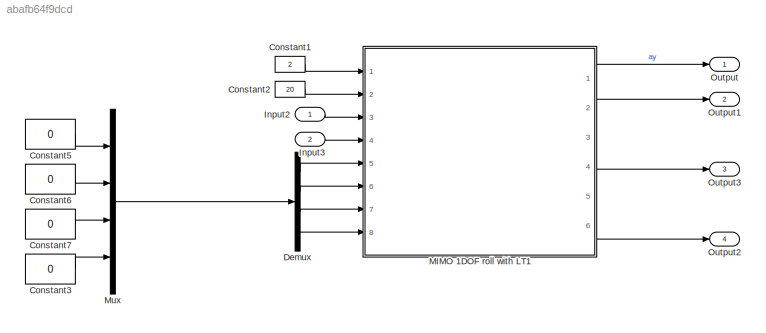
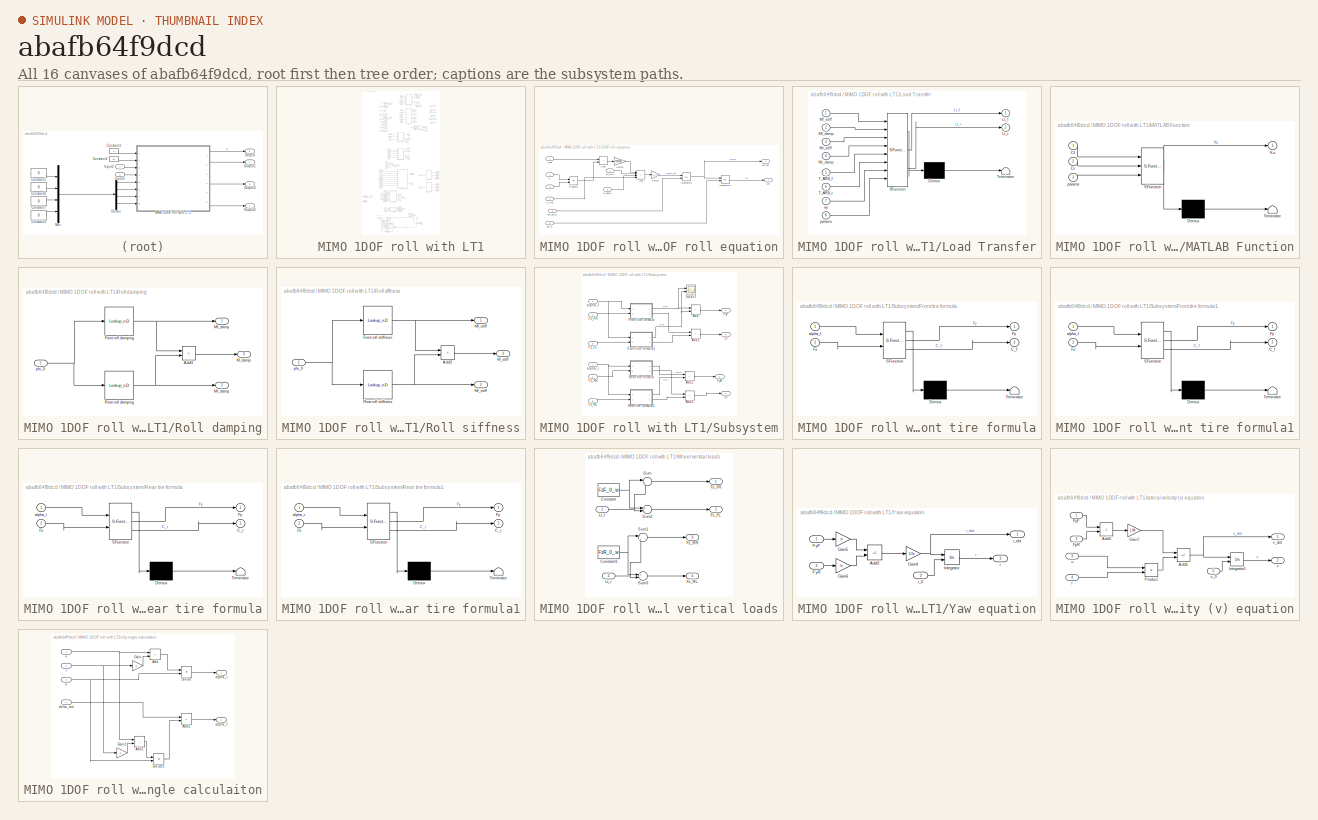
[diagram: thumbnail index - all 16 canvases of the model, root first then tree order]
MODEL slx_abafb64f9dcd
KIND model
CONFIG AbsTol = auto
CONFIG EnableMultiTasking = off
CONFIG FixedStep = auto
CONFIG MaxStep = auto
CONFIG MinStep = auto
CONFIG RelTol = 1e-3
CONFIG SampleTimeConstraint = Unconstrained
CONFIG SolverName = VariableStepAuto
CONFIG StartTime = 0.0
CONFIG StopTime = 10
BLOCK [Constant] Constant1
  Value = 2
BLOCK [Constant] Constant2
  Value = 20
BLOCK [Constant] Constant3
  Value = 0
BLOCK [Constant] Constant5
  Value = 0
BLOCK [Constant] Constant6
  Value = 0
BLOCK [Constant] Constant7
  Value = 0
BLOCK [Demux] Demux
  Ports = [1, 4]
BLOCK [Inport] Input2
BLOCK [Inport] Input3
  Port = 2
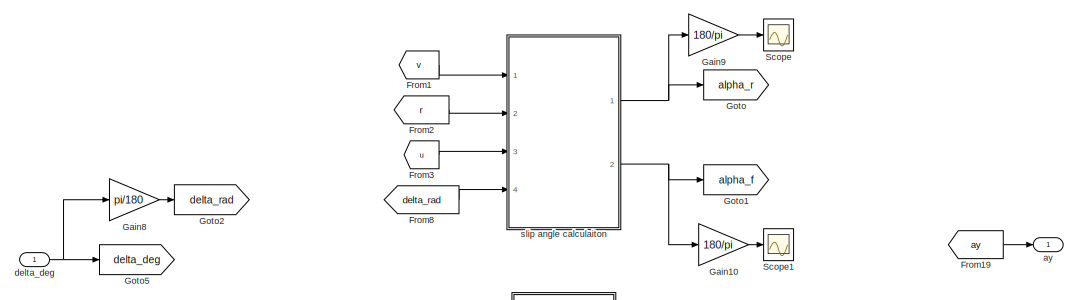
[diagram: MIMO 1DOF roll with LT1 - part 1/4, full width, top band]
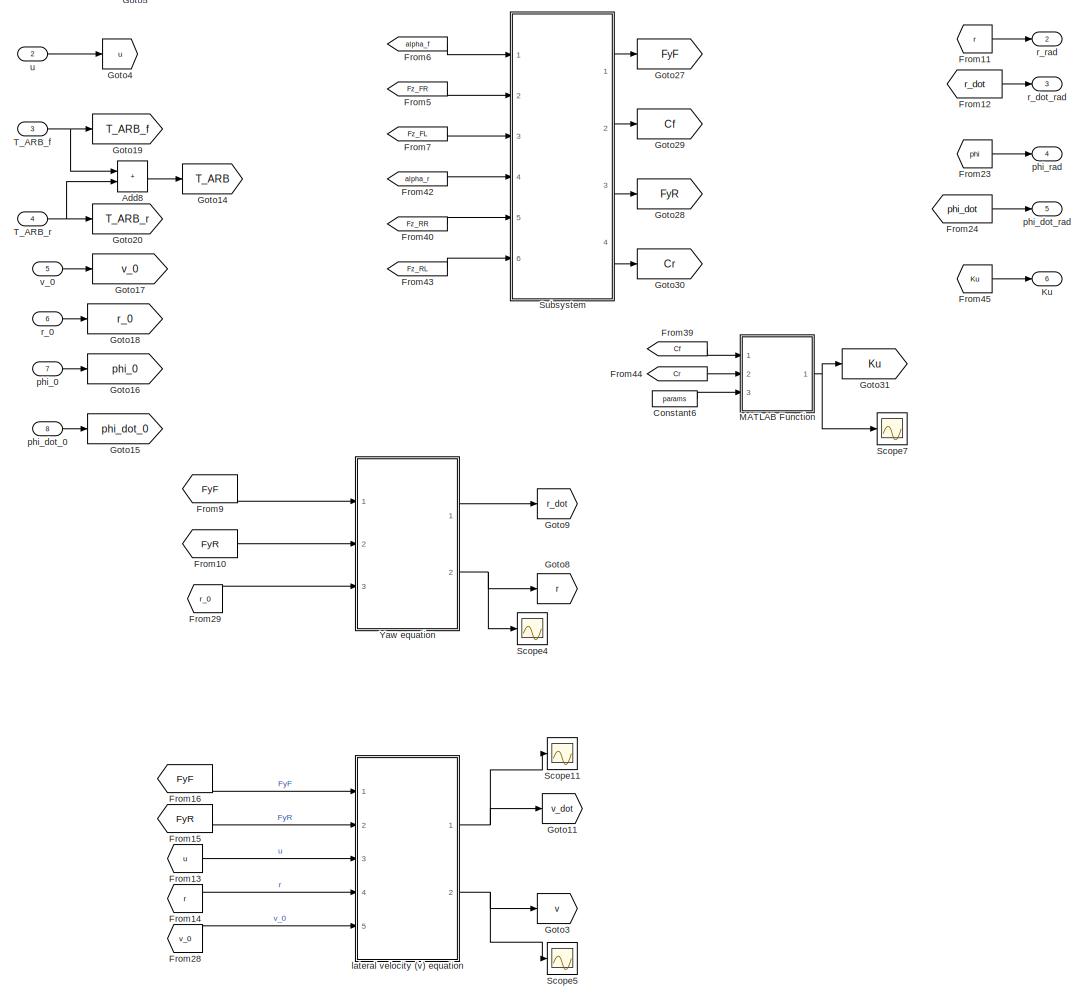
[diagram: MIMO 1DOF roll with LT1 - part 2/4, full width, top band]
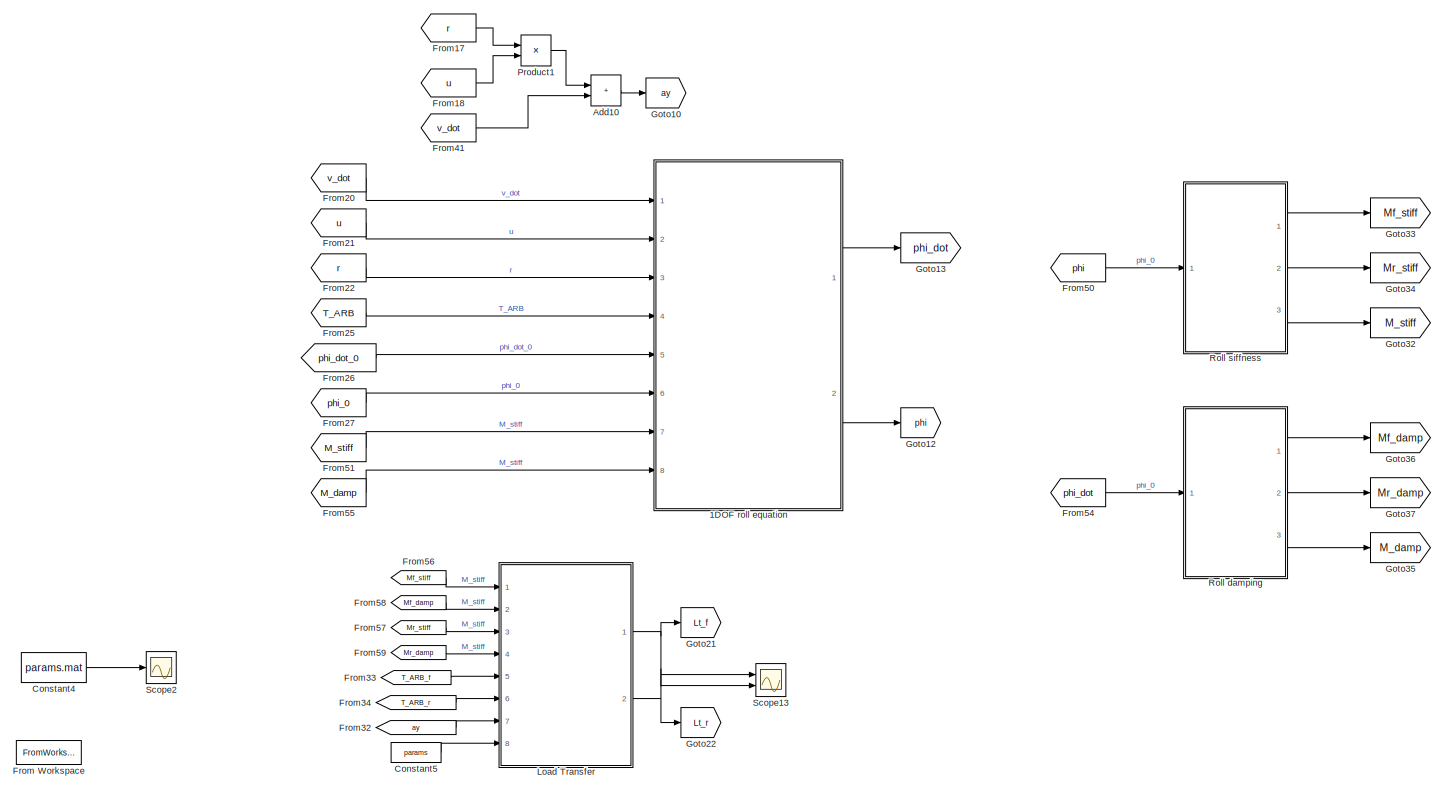
[diagram: MIMO 1DOF roll with LT1 - part 3/4, full width, middle band]
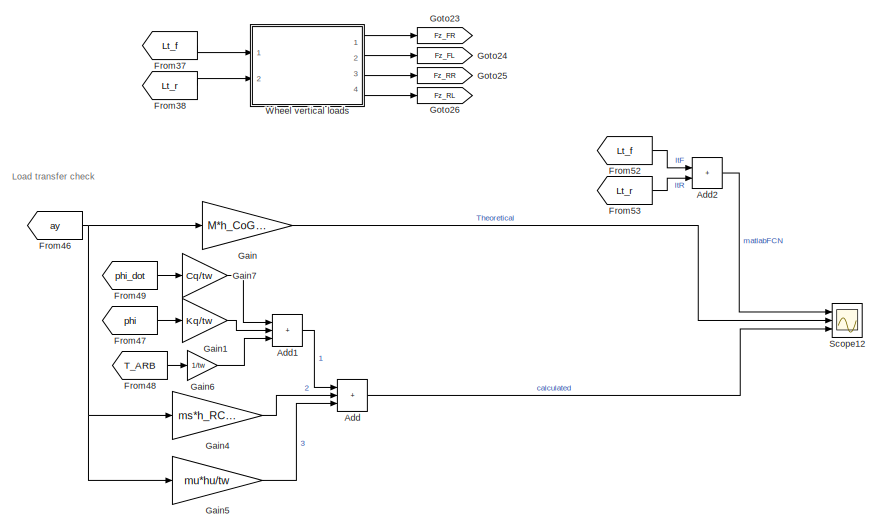
[diagram: MIMO 1DOF roll with LT1 - part 4/4, bottom center region]
BLOCK [SubSystem] MIMO 1DOF roll with LT1
  MinAlgLoopOccurrences = on
  Ports = [8, 6]
  RequestExecContextInheritance = off
  TreatAsAtomicUnit = on
BLOCK [SubSystem] MIMO 1DOF roll with LT1/1DOF roll equation
  Ports = [8, 2]
  RequestExecContextInheritance = off
BLOCK [Sum] MIMO 1DOF roll with LT1/1DOF roll equation/Add6
  IconShape = rectangular
  Ports = [2, 1]
BLOCK [Sum] MIMO 1DOF roll with LT1/1DOF roll equation/Add7
  IconShape = rectangular
  Inputs = +---
  Ports = [4, 1]
BLOCK [Gain] MIMO 1DOF roll with LT1/1DOF roll equation/Gain11
  Gain = 1/Ix
BLOCK [Gain] MIMO 1DOF roll with LT1/1DOF roll equation/Gain12
  Gain = ms*hs
BLOCK [Integrator] MIMO 1DOF roll with LT1/1DOF roll equation/Integrator2
  InitialConditionSource = external
  Ports = [2, 1]
BLOCK [Integrator] MIMO 1DOF roll with LT1/1DOF roll equation/Integrator3
  InitialConditionSource = external
  Ports = [2, 1]
BLOCK [Inport] MIMO 1DOF roll with LT1/1DOF roll equation/M_damp
  Port = 8
BLOCK [Inport] MIMO 1DOF roll with LT1/1DOF roll equation/M_stiff
  Port = 7
BLOCK [Product] MIMO 1DOF roll with LT1/1DOF roll equation/Product2
  Ports = [2, 1]
BLOCK [Inport] MIMO 1DOF roll with LT1/1DOF roll equation/T_ARB
  Port = 4
BLOCK [Outport] MIMO 1DOF roll with LT1/1DOF roll equation/phi
  Port = 2
BLOCK [Inport] MIMO 1DOF roll with LT1/1DOF roll equation/phi_0
  Port = 6
BLOCK [Outport] MIMO 1DOF roll with LT1/1DOF roll equation/phi_dot
BLOCK [Inport] MIMO 1DOF roll with LT1/1DOF roll equation/phi_dot_0
  Port = 5
BLOCK [Inport] MIMO 1DOF roll with LT1/1DOF roll equation/r
  Port = 3
BLOCK [Inport] MIMO 1DOF roll with LT1/1DOF roll equation/u
  Port = 2
BLOCK [Inport] MIMO 1DOF roll with LT1/1DOF roll equation/v_dot
BLOCK [Sum] MIMO 1DOF roll with LT1/Add
  Commented = on
  IconShape = rectangular
  Inputs = +++
  Ports = [3, 1]
BLOCK [Sum] MIMO 1DOF roll with LT1/Add1
  Commented = on
  IconShape = rectangular
  Inputs = +++
  Ports = [3, 1]
BLOCK [Sum] MIMO 1DOF roll with LT1/Add10
  IconShape = rectangular
  Ports = [2, 1]
BLOCK [Sum] MIMO 1DOF roll with LT1/Add2
  Commented = on
  IconShape = rectangular
  Ports = [2, 1]
BLOCK [Sum] MIMO 1DOF roll with LT1/Add8
  IconShape = rectangular
  Ports = [2, 1]
BLOCK [Constant] MIMO 1DOF roll with LT1/Constant4
  Commented = on
  Value = params.mat
BLOCK [Constant] MIMO 1DOF roll with LT1/Constant5
  Value = params
BLOCK [Constant] MIMO 1DOF roll with LT1/Constant6
  Value = params
BLOCK [FromWorkspace] MIMO 1DOF roll with LT1/From Workspace
  Commented = on
  VariableName = simin
BLOCK [From] MIMO 1DOF roll with LT1/From1
  GotoTag = v
BLOCK [From] MIMO 1DOF roll with LT1/From10
  GotoTag = FyR
BLOCK [From] MIMO 1DOF roll with LT1/From11
  GotoTag = r
BLOCK [From] MIMO 1DOF roll with LT1/From12
  GotoTag = r_dot
BLOCK [From] MIMO 1DOF roll with LT1/From13
  GotoTag = u
BLOCK [From] MIMO 1DOF roll with LT1/From14
  GotoTag = r
BLOCK [From] MIMO 1DOF roll with LT1/From15
  GotoTag = FyR
BLOCK [From] MIMO 1DOF roll with LT1/From16
  GotoTag = FyF
BLOCK [From] MIMO 1DOF roll with LT1/From17
  GotoTag = r
BLOCK [From] MIMO 1DOF roll with LT1/From18
  GotoTag = u
BLOCK [From] MIMO 1DOF roll with LT1/From19
  GotoTag = ay
BLOCK [From] MIMO 1DOF roll with LT1/From2
  GotoTag = r
BLOCK [From] MIMO 1DOF roll with LT1/From20
  GotoTag = v_dot
BLOCK [From] MIMO 1DOF roll with LT1/From21
  GotoTag = u
BLOCK [From] MIMO 1DOF roll with LT1/From22
  GotoTag = r
BLOCK [From] MIMO 1DOF roll with LT1/From23
  GotoTag = phi
BLOCK [From] MIMO 1DOF roll with LT1/From24
  GotoTag = phi_dot
BLOCK [From] MIMO 1DOF roll with LT1/From25
  GotoTag = T_ARB
BLOCK [From] MIMO 1DOF roll with LT1/From26
  GotoTag = phi_dot_0
BLOCK [From] MIMO 1DOF roll with LT1/From27
  GotoTag = phi_0
BLOCK [From] MIMO 1DOF roll with LT1/From28
  GotoTag = v_0
BLOCK [From] MIMO 1DOF roll with LT1/From29
  GotoTag = r_0
BLOCK [From] MIMO 1DOF roll with LT1/From3
  GotoTag = u
BLOCK [From] MIMO 1DOF roll with LT1/From32
  GotoTag = ay
BLOCK [From] MIMO 1DOF roll with LT1/From33
  GotoTag = T_ARB_f
BLOCK [From] MIMO 1DOF roll with LT1/From34
  GotoTag = T_ARB_r
BLOCK [From] MIMO 1DOF roll with LT1/From37
  GotoTag = Lt_f
BLOCK [From] MIMO 1DOF roll with LT1/From38
  GotoTag = Lt_r
BLOCK [From] MIMO 1DOF roll with LT1/From39
  GotoTag = Cf
BLOCK [From] MIMO 1DOF roll with LT1/From40
  GotoTag = Fz_RR
BLOCK [From] MIMO 1DOF roll with LT1/From41
  GotoTag = v_dot
BLOCK [From] MIMO 1DOF roll with LT1/From42
  GotoTag = alpha_r
BLOCK [From] MIMO 1DOF roll with LT1/From43
  GotoTag = Fz_RL
BLOCK [From] MIMO 1DOF roll with LT1/From44
  GotoTag = Cr
BLOCK [From] MIMO 1DOF roll with LT1/From45
  GotoTag = Ku
BLOCK [From] MIMO 1DOF roll with LT1/From46
  Commented = on
  GotoTag = ay
BLOCK [From] MIMO 1DOF roll with LT1/From47
  Commented = on
  GotoTag = phi
BLOCK [From] MIMO 1DOF roll with LT1/From48
  Commented = on
  GotoTag = T_ARB
BLOCK [From] MIMO 1DOF roll with LT1/From49
  Commented = on
  GotoTag = phi_dot
BLOCK [From] MIMO 1DOF roll with LT1/From5
  GotoTag = Fz_FR
BLOCK [From] MIMO 1DOF roll with LT1/From50
  GotoTag = phi
BLOCK [From] MIMO 1DOF roll with LT1/From51
  GotoTag = M_stiff
BLOCK [From] MIMO 1DOF roll with LT1/From52
  Commented = on
  GotoTag = Lt_f
BLOCK [From] MIMO 1DOF roll with LT1/From53
  Commented = on
  GotoTag = Lt_r
BLOCK [From] MIMO 1DOF roll with LT1/From54
  GotoTag = phi_dot
BLOCK [From] MIMO 1DOF roll with LT1/From55
  GotoTag = M_damp
BLOCK [From] MIMO 1DOF roll with LT1/From56
  GotoTag = Mf_stiff
BLOCK [From] MIMO 1DOF roll with LT1/From57
  GotoTag = Mr_stiff
BLOCK [From] MIMO 1DOF roll with LT1/From58
  GotoTag = Mf_damp
BLOCK [From] MIMO 1DOF roll with LT1/From59
  GotoTag = Mr_damp
BLOCK [From] MIMO 1DOF roll with LT1/From6
  GotoTag = alpha_f
BLOCK [From] MIMO 1DOF roll with LT1/From7
  GotoTag = Fz_FL
BLOCK [From] MIMO 1DOF roll with LT1/From8
  GotoTag = delta_rad
BLOCK [From] MIMO 1DOF roll with LT1/From9
  GotoTag = FyF
BLOCK [Gain] MIMO 1DOF roll with LT1/Gain
  Commented = on
  Gain = M*h_CoG/tw
BLOCK [Gain] MIMO 1DOF roll with LT1/Gain1
  Commented = on
  Gain = Kq/tw
BLOCK [Gain] MIMO 1DOF roll with LT1/Gain10
  Gain = 180/pi
BLOCK [Gain] MIMO 1DOF roll with LT1/Gain4
  Commented = on
  Gain = ms*h_RC/tw
BLOCK [Gain] MIMO 1DOF roll with LT1/Gain5
  Commented = on
  Gain = mu*hu/tw
BLOCK [Gain] MIMO 1DOF roll with LT1/Gain6
  Commented = on
  Gain = 1/tw
BLOCK [Gain] MIMO 1DOF roll with LT1/Gain7
  Commented = on
  Gain = Cq/tw
BLOCK [Gain] MIMO 1DOF roll with LT1/Gain8
  Gain = pi/180
BLOCK [Gain] MIMO 1DOF roll with LT1/Gain9
  Gain = 180/pi
BLOCK [Goto] MIMO 1DOF roll with LT1/Goto
  GotoTag = alpha_r
BLOCK [Goto] MIMO 1DOF roll with LT1/Goto1
  GotoTag = alpha_f
BLOCK [Goto] MIMO 1DOF roll with LT1/Goto10
  GotoTag = ay
BLOCK [Goto] MIMO 1DOF roll with LT1/Goto11
  GotoTag = v_dot
BLOCK [Goto] MIMO 1DOF roll with LT1/Goto12
  GotoTag = phi
BLOCK [Goto] MIMO 1DOF roll with LT1/Goto13
  GotoTag = phi_dot
BLOCK [Goto] MIMO 1DOF roll with LT1/Goto14
  GotoTag = T_ARB
BLOCK [Goto] MIMO 1DOF roll with LT1/Goto15
  GotoTag = phi_dot_0
BLOCK [Goto] MIMO 1DOF roll with LT1/Goto16
  GotoTag = phi_0
BLOCK [Goto] MIMO 1DOF roll with LT1/Goto17
  GotoTag = v_0
BLOCK [Goto] MIMO 1DOF roll with LT1/Goto18
  GotoTag = r_0
BLOCK [Goto] MIMO 1DOF roll with LT1/Goto19
  GotoTag = T_ARB_f
BLOCK [Goto] MIMO 1DOF roll with LT1/Goto2
  GotoTag = delta_rad
BLOCK [Goto] MIMO 1DOF roll with LT1/Goto20
  GotoTag = T_ARB_r
BLOCK [Goto] MIMO 1DOF roll with LT1/Goto21
  GotoTag = Lt_f
BLOCK [Goto] MIMO 1DOF roll with LT1/Goto22
  GotoTag = Lt_r
BLOCK [Goto] MIMO 1DOF roll with LT1/Goto23
  GotoTag = Fz_FR
BLOCK [Goto] MIMO 1DOF roll with LT1/Goto24
  GotoTag = Fz_FL
BLOCK [Goto] MIMO 1DOF roll with LT1/Goto25
  GotoTag = Fz_RR
BLOCK [Goto] MIMO 1DOF roll with LT1/Goto26
  GotoTag = Fz_RL
BLOCK [Goto] MIMO 1DOF roll with LT1/Goto27
  GotoTag = FyF
BLOCK [Goto] MIMO 1DOF roll with LT1/Goto28
  GotoTag = FyR
BLOCK [Goto] MIMO 1DOF roll with LT1/Goto29
  GotoTag = Cf
BLOCK [Goto] MIMO 1DOF roll with LT1/Goto3
  GotoTag = v
BLOCK [Goto] MIMO 1DOF roll with LT1/Goto30
  GotoTag = Cr
BLOCK [Goto] MIMO 1DOF roll with LT1/Goto31
  GotoTag = Ku
BLOCK [Goto] MIMO 1DOF roll with LT1/Goto32
  GotoTag = M_stiff
BLOCK [Goto] MIMO 1DOF roll with LT1/Goto33
  GotoTag = Mf_stiff
BLOCK [Goto] MIMO 1DOF roll with LT1/Goto34
  GotoTag = Mr_stiff
BLOCK [Goto] MIMO 1DOF roll with LT1/Goto35
  GotoTag = M_damp
BLOCK [Goto] MIMO 1DOF roll with LT1/Goto36
  GotoTag = Mf_damp
BLOCK [Goto] MIMO 1DOF roll with LT1/Goto37
  GotoTag = Mr_damp
BLOCK [Goto] MIMO 1DOF roll with LT1/Goto4
  GotoTag = u
BLOCK [Goto] MIMO 1DOF roll with LT1/Goto5
  Commented = on
  GotoTag = delta_deg
BLOCK [Goto] MIMO 1DOF roll with LT1/Goto8
  GotoTag = r
BLOCK [Goto] MIMO 1DOF roll with LT1/Goto9
  GotoTag = r_dot
BLOCK [Outport] MIMO 1DOF roll with LT1/Ku
  Port = 6
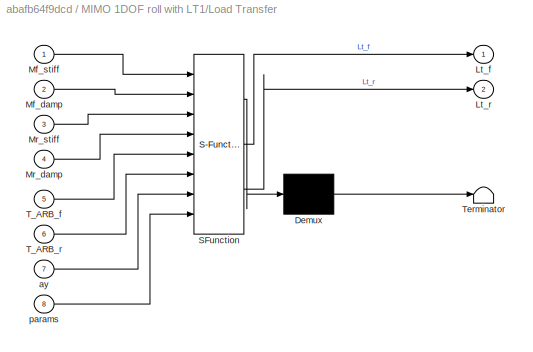
BLOCK [SubSystem] MIMO 1DOF roll with LT1/Load Transfer
  ErrorFcn = Stateflow.Translate.translate
  PermitHierarchicalResolution = ExplicitOnly
  Ports = [8, 2]
  RequestExecContextInheritance = off
  SFBlockType = MATLAB Function
  TreatAsAtomicUnit = on
BLOCK [Demux] MIMO 1DOF roll with LT1/Load Transfer/ Demux 
  Outputs = 1
  Ports = [1, 1]
BLOCK [S-Function] MIMO 1DOF roll with LT1/Load Transfer/ SFunction 
  EnableBusSupport = on
  FunctionName = sf_sfun
  PortCounts = [8 3]
  Ports = [8, 3]
  SFcnIsStateOwnerBlock = off
  SFunctionDeploymentMode = off
  Tag = Stateflow S-Function 13
BLOCK [Terminator] MIMO 1DOF roll with LT1/Load Transfer/ Terminator 
BLOCK [Outport] MIMO 1DOF roll with LT1/Load Transfer/Lt_f
BLOCK [Outport] MIMO 1DOF roll with LT1/Load Transfer/Lt_r
  Port = 2
BLOCK [Inport] MIMO 1DOF roll with LT1/Load Transfer/Mf_damp
  Port = 2
BLOCK [Inport] MIMO 1DOF roll with LT1/Load Transfer/Mf_stiff
BLOCK [Inport] MIMO 1DOF roll with LT1/Load Transfer/Mr_damp
  Port = 4
BLOCK [Inport] MIMO 1DOF roll with LT1/Load Transfer/Mr_stiff
  Port = 3
BLOCK [Inport] MIMO 1DOF roll with LT1/Load Transfer/T_ARB_f
  Port = 5
BLOCK [Inport] MIMO 1DOF roll with LT1/Load Transfer/T_ARB_r
  Port = 6
BLOCK [Inport] MIMO 1DOF roll with LT1/Load Transfer/ay
  Port = 7
BLOCK [Inport] MIMO 1DOF roll with LT1/Load Transfer/params
  Port = 8
BLOCK [SubSystem] MIMO 1DOF roll with LT1/MATLAB Function
  ErrorFcn = Stateflow.Translate.translate
  PermitHierarchicalResolution = ExplicitOnly
  Ports = [3, 1]
  RequestExecContextInheritance = off
  SFBlockType = MATLAB Function
  TreatAsAtomicUnit = on
BLOCK [Demux] MIMO 1DOF roll with LT1/MATLAB Function/ Demux 
  Outputs = 1
  Ports = [1, 1]
BLOCK [S-Function] MIMO 1DOF roll with LT1/MATLAB Function/ SFunction 
  EnableBusSupport = on
  FunctionName = sf_sfun
  PortCounts = [3 2]
  Ports = [3, 2]
  SFcnIsStateOwnerBlock = off
  SFunctionDeploymentMode = off
  Tag = Stateflow S-Function 14
BLOCK [Terminator] MIMO 1DOF roll with LT1/MATLAB Function/ Terminator 
BLOCK [Inport] MIMO 1DOF roll with LT1/MATLAB Function/Cf
BLOCK [Inport] MIMO 1DOF roll with LT1/MATLAB Function/Cr
  Port = 2
BLOCK [Outport] MIMO 1DOF roll with LT1/MATLAB Function/Ku
BLOCK [Inport] MIMO 1DOF roll with LT1/MATLAB Function/params
  Port = 3
BLOCK [Product] MIMO 1DOF roll with LT1/Product1
  Ports = [2, 1]
BLOCK [SubSystem] MIMO 1DOF roll with LT1/Roll damping
  Ports = [1, 3]
  RequestExecContextInheritance = off
BLOCK [Sum] MIMO 1DOF roll with LT1/Roll damping/Add3
  IconShape = rectangular
  Ports = [2, 1]
BLOCK [Lookup_n-D] MIMO 1DOF roll with LT1/Roll damping/Front roll damping
  BreakpointsForDimension1 = theta_dot_f_damp
  InputPortMap = u0
  InternalRulePriority = Speed
  NumberOfTableDimensions = 1
  Ports = [1, 1]
  RndMeth = Simplest
  Table = M_damp_f
BLOCK [Outport] MIMO 1DOF roll with LT1/Roll damping/M_damp
  Port = 3
BLOCK [Outport] MIMO 1DOF roll with LT1/Roll damping/Mf_damp
BLOCK [Outport] MIMO 1DOF roll with LT1/Roll damping/Mr_damp
  Port = 2
BLOCK [Lookup_n-D] MIMO 1DOF roll with LT1/Roll damping/Rear roll damping
  BreakpointsForDimension1 = theta_dot_r_damp
  InputPortMap = u0
  InternalRulePriority = Speed
  NumberOfTableDimensions = 1
  Ports = [1, 1]
  RndMeth = Simplest
  Table = M_damp_r
BLOCK [Inport] MIMO 1DOF roll with LT1/Roll damping/phi_0
BLOCK [SubSystem] MIMO 1DOF roll with LT1/Roll siffness
  Ports = [1, 3]
  RequestExecContextInheritance = off
BLOCK [Sum] MIMO 1DOF roll with LT1/Roll siffness/Add3
  IconShape = rectangular
  Ports = [2, 1]
BLOCK [Lookup_n-D] MIMO 1DOF roll with LT1/Roll siffness/Front roll stiffness
  BreakpointsForDimension1 = theta_f_stiff
  InputPortMap = u0
  InternalRulePriority = Speed
  NumberOfTableDimensions = 1
  Ports = [1, 1]
  RndMeth = Simplest
  Table = Mf_stiff
BLOCK [Outport] MIMO 1DOF roll with LT1/Roll siffness/M_stiff
  Port = 3
BLOCK [Outport] MIMO 1DOF roll with LT1/Roll siffness/Mf_stiff
BLOCK [Outport] MIMO 1DOF roll with LT1/Roll siffness/Mr_stiff
  Port = 2
BLOCK [Lookup_n-D] MIMO 1DOF roll with LT1/Roll siffness/Rear roll stiffness
  BreakpointsForDimension1 = theta_r_stiff
  InputPortMap = u0
  InternalRulePriority = Speed
  NumberOfTableDimensions = 1
  Ports = [1, 1]
  RndMeth = Simplest
  Table = Mr_stiff
BLOCK [Inport] MIMO 1DOF roll with LT1/Roll siffness/phi_0
BLOCK [Scope] MIMO 1DOF roll with LT1/Scope
  Floating = off
  NumInputPorts = 1
  Ports = [1]
  ScopeSpecificationString = Simulink.scopes.TimeScopeBlockCfg('CurrentConfiguration', extmgr.ConfigurationSet(extmgr.Configuration('Core','General UI',true,'FigureColor',[1 1 1]),extmgr.Configuration('Core','Source UI',true),extmgr.Configuration('Sources','WiredSimulink',true,'DataLoggingVariableName','ScopeData2'),extmgr.Configuration('Visuals','Time Domain',true,'SerializedDisplays',{struct('MinYLimReal','-0.13984','MaxYLi...<+1551ch>
BLOCK [Scope] MIMO 1DOF roll with LT1/Scope1
  Floating = off
  NumInputPorts = 1
  Ports = [1]
  ScopeSpecificationString = Simulink.scopes.TimeScopeBlockCfg('CurrentConfiguration', extmgr.ConfigurationSet(extmgr.Configuration('Core','General UI',true,'FigureColor',[1 1 1]),extmgr.Configuration('Core','Source UI',true),extmgr.Configuration('Sources','WiredSimulink',true,'DataLoggingVariableName','ScopeData3'),extmgr.Configuration('Visuals','Time Domain',true,'SerializedDisplays',{struct('MinYLimReal','-0.14511','MaxYLi...<+1530ch>
BLOCK [Scope] MIMO 1DOF roll with LT1/Scope11
  Floating = off
  NumInputPorts = 1
  Ports = [1]
  ScopeSpecificationString = Simulink.scopes.TimeScopeBlockCfg('CurrentConfiguration', extmgr.ConfigurationSet(extmgr.Configuration('Core','General UI',true,'FigureColor',[1 1 1]),extmgr.Configuration('Core','Source UI',true),extmgr.Configuration('Sources','WiredSimulink',true,'DataLoggingVariableName','ScopeData4'),extmgr.Configuration('Visuals','Time Domain',true,'SerializedDisplays',{struct('MinYLimReal','-1.82306','MaxYLi...<+1551ch>
BLOCK [Scope] MIMO 1DOF roll with LT1/Scope12
  Commented = on
  Floating = off
  NumInputPorts = 3
  Ports = [3]
  ScopeSpecificationString = Simulink.scopes.TimeScopeBlockCfg('CurrentConfiguration', extmgr.ConfigurationSet(extmgr.Configuration('Core','General UI',true,'FigureColor',[1 1 1]),extmgr.Configuration('Core','Source UI',true),extmgr.Configuration('Sources','WiredSimulink',true,'DataLoggingVariableName','ScopeData2'),extmgr.Configuration('Visuals','Time Domain',true,'SerializedDisplays',{struct('MinYLimReal','-694.89076','MaxY...<+2062ch>
BLOCK [Scope] MIMO 1DOF roll with LT1/Scope13
  Floating = off
  NumInputPorts = 2
  Ports = [2]
  ScopeSpecificationString = Simulink.scopes.TimeScopeBlockCfg('CurrentConfiguration', extmgr.ConfigurationSet(extmgr.Configuration('Core','General UI',true,'FigureColor',[1 1 1]),extmgr.Configuration('Core','Source UI',true),extmgr.Configuration('Sources','WiredSimulink',true,'DataLoggingVariableName','ScopeData1'),extmgr.Configuration('Visuals','Time Domain',true,'SerializedDisplays',{struct('MinYLimReal','-381.19085','MaxY...<+1588ch>
BLOCK [Scope] MIMO 1DOF roll with LT1/Scope2
  Commented = on
  Floating = off
  NumInputPorts = 1
  Ports = [1]
  ScopeSpecificationString = Simulink.scopes.TimeScopeBlockCfg('CurrentConfiguration', extmgr.ConfigurationSet(extmgr.Configuration('Core','General UI',true),extmgr.Configuration('Core','Source UI',true),extmgr.Configuration('Sources','WiredSimulink',true,'DataLoggingVariableName','ScopeData1'),extmgr.Configuration('Visuals','Time Domain',true,'SerializedDisplays',{struct('MinYLimReal','-10.00000','MaxYLimReal','10.00000','YL...<+1365ch>
BLOCK [Scope] MIMO 1DOF roll with LT1/Scope4
  Floating = off
  NumInputPorts = 1
  Ports = [1]
  ScopeSpecificationString = Simulink.scopes.TimeScopeBlockCfg('CurrentConfiguration', extmgr.ConfigurationSet(extmgr.Configuration('Core','General UI',true,'FigureColor',[1 1 1]),extmgr.Configuration('Core','Source UI',true),extmgr.Configuration('Sources','WiredSimulink',true,'DataLoggingVariableName','ScopeData6'),extmgr.Configuration('Visuals','Time Domain',true,'SerializedDisplays',{struct('MinYLimReal','-0.02792','MaxYLi...<+1560ch>
BLOCK [Scope] MIMO 1DOF roll with LT1/Scope5
  Floating = off
  NumInputPorts = 1
  Ports = [1]
  ScopeSpecificationString = Simulink.scopes.TimeScopeBlockCfg('CurrentConfiguration', extmgr.ConfigurationSet(extmgr.Configuration('Core','General UI',true,'FigureColor',[1 1 1]),extmgr.Configuration('Core','Source UI',true),extmgr.Configuration('Sources','WiredSimulink',true,'DataLoggingVariableName','ScopeData7'),extmgr.Configuration('Visuals','Time Domain',true,'SerializedDisplays',{struct('MinYLimReal','-2.8148','MaxYLim...<+1543ch>
BLOCK [Scope] MIMO 1DOF roll with LT1/Scope7
  Floating = off
  NumInputPorts = 1
  Ports = [1]
  ScopeSpecificationString = Simulink.scopes.TimeScopeBlockCfg('CurrentConfiguration', extmgr.ConfigurationSet(extmgr.Configuration('Core','General UI',true,'FigureColor',[1 1 1]),extmgr.Configuration('Core','Source UI',true),extmgr.Configuration('Sources','WiredSimulink',true,'DataLoggingVariableName','ScopeData5'),extmgr.Configuration('Visuals','Time Domain',true,'SerializedDisplays',{struct('MinYLimReal','0.00013','MaxYLim...<+1545ch>
BLOCK [SubSystem] MIMO 1DOF roll with LT1/Subsystem
  AttributesFormatString = %<MinAlgLoopOccurrences>
  Ports = [6, 4]
  RequestExecContextInheritance = off
BLOCK [Sum] MIMO 1DOF roll with LT1/Subsystem/Add
  IconShape = rectangular
  Ports = [2, 1]
BLOCK [Sum] MIMO 1DOF roll with LT1/Subsystem/Add1
  IconShape = rectangular
  Ports = [2, 1]
BLOCK [Sum] MIMO 1DOF roll with LT1/Subsystem/Add2
  IconShape = rectangular
  Ports = [2, 1]
BLOCK [Sum] MIMO 1DOF roll with LT1/Subsystem/Add3
  IconShape = rectangular
  Ports = [2, 1]
BLOCK [Outport] MIMO 1DOF roll with LT1/Subsystem/Cf
  Port = 2
BLOCK [Outport] MIMO 1DOF roll with LT1/Subsystem/Cr
  Port = 4
BLOCK [SubSystem] MIMO 1DOF roll with LT1/Subsystem/Front tire formula
  AttributesFormatString = %<MinAlgLoopOccurrences>
  ErrorFcn = Stateflow.Translate.translate
  MinAlgLoopOccurrences = on
  PermitHierarchicalResolution = ExplicitOnly
  Ports = [2, 2]
  RequestExecContextInheritance = off
  SFBlockType = MATLAB Function
  TreatAsAtomicUnit = on
BLOCK [Demux] MIMO 1DOF roll with LT1/Subsystem/Front tire formula/ Demux 
  Outputs = 1
  Ports = [1, 1]
BLOCK [S-Function] MIMO 1DOF roll with LT1/Subsystem/Front tire formula/ SFunction 
  EnableBusSupport = on
  FunctionName = sf_sfun
  PortCounts = [2 3]
  Ports = [2, 3]
  SFcnIsStateOwnerBlock = off
  SFunctionDeploymentMode = off
  Tag = Stateflow S-Function 15
BLOCK [Terminator] MIMO 1DOF roll with LT1/Subsystem/Front tire formula/ Terminator 
BLOCK [Outport] MIMO 1DOF roll with LT1/Subsystem/Front tire formula/C_f
  Port = 2
BLOCK [Outport] MIMO 1DOF roll with LT1/Subsystem/Front tire formula/Fy
BLOCK [Inport] MIMO 1DOF roll with LT1/Subsystem/Front tire formula/Fz
  Port = 2
BLOCK [Inport] MIMO 1DOF roll with LT1/Subsystem/Front tire formula/alpha_f
BLOCK [SubSystem] MIMO 1DOF roll with LT1/Subsystem/Front tire formula1
  ErrorFcn = Stateflow.Translate.translate
  MinAlgLoopOccurrences = on
  PermitHierarchicalResolution = ExplicitOnly
  Ports = [2, 2]
  RequestExecContextInheritance = off
  SFBlockType = MATLAB Function
  TreatAsAtomicUnit = on
BLOCK [Demux] MIMO 1DOF roll with LT1/Subsystem/Front tire formula1/ Demux 
  Outputs = 1
  Ports = [1, 1]
BLOCK [S-Function] MIMO 1DOF roll with LT1/Subsystem/Front tire formula1/ SFunction 
  EnableBusSupport = on
  FunctionName = sf_sfun
  PortCounts = [2 3]
  Ports = [2, 3]
  SFcnIsStateOwnerBlock = off
  SFunctionDeploymentMode = off
  Tag = Stateflow S-Function 16
BLOCK [Terminator] MIMO 1DOF roll with LT1/Subsystem/Front tire formula1/ Terminator 
BLOCK [Outport] MIMO 1DOF roll with LT1/Subsystem/Front tire formula1/C_f
  Port = 2
BLOCK [Outport] MIMO 1DOF roll with LT1/Subsystem/Front tire formula1/Fy
BLOCK [Inport] MIMO 1DOF roll with LT1/Subsystem/Front tire formula1/Fz
  Port = 2
BLOCK [Inport] MIMO 1DOF roll with LT1/Subsystem/Front tire formula1/alpha_f
BLOCK [Outport] MIMO 1DOF roll with LT1/Subsystem/FyF
BLOCK [Outport] MIMO 1DOF roll with LT1/Subsystem/FyR
  Port = 3
BLOCK [Inport] MIMO 1DOF roll with LT1/Subsystem/Fz_FL
  Port = 3
BLOCK [Inport] MIMO 1DOF roll with LT1/Subsystem/Fz_FR
  Port = 2
BLOCK [Inport] MIMO 1DOF roll with LT1/Subsystem/Fz_RL
  Port = 6
BLOCK [Inport] MIMO 1DOF roll with LT1/Subsystem/Fz_RR
  Port = 5
BLOCK [SubSystem] MIMO 1DOF roll with LT1/Subsystem/Rear tire formula
  ErrorFcn = Stateflow.Translate.translate
  MinAlgLoopOccurrences = on
  PermitHierarchicalResolution = ExplicitOnly
  Ports = [2, 2]
  RequestExecContextInheritance = off
  SFBlockType = MATLAB Function
  TreatAsAtomicUnit = on
BLOCK [Demux] MIMO 1DOF roll with LT1/Subsystem/Rear tire formula/ Demux 
  Outputs = 1
  Ports = [1, 1]
BLOCK [S-Function] MIMO 1DOF roll with LT1/Subsystem/Rear tire formula/ SFunction 
  EnableBusSupport = on
  FunctionName = sf_sfun
  PortCounts = [2 3]
  Ports = [2, 3]
  SFcnIsStateOwnerBlock = off
  SFunctionDeploymentMode = off
  Tag = Stateflow S-Function 17
BLOCK [Terminator] MIMO 1DOF roll with LT1/Subsystem/Rear tire formula/ Terminator 
BLOCK [Outport] MIMO 1DOF roll with LT1/Subsystem/Rear tire formula/C_r
  Port = 2
BLOCK [Outport] MIMO 1DOF roll with LT1/Subsystem/Rear tire formula/Fy
BLOCK [Inport] MIMO 1DOF roll with LT1/Subsystem/Rear tire formula/Fz
  Port = 2
BLOCK [Inport] MIMO 1DOF roll with LT1/Subsystem/Rear tire formula/alpha_r
BLOCK [SubSystem] MIMO 1DOF roll with LT1/Subsystem/Rear tire formula1
  ErrorFcn = Stateflow.Translate.translate
  MinAlgLoopOccurrences = on
  PermitHierarchicalResolution = ExplicitOnly
  Ports = [2, 2]
  RequestExecContextInheritance = off
  SFBlockType = MATLAB Function
  TreatAsAtomicUnit = on
BLOCK [Demux] MIMO 1DOF roll with LT1/Subsystem/Rear tire formula1/ Demux 
  Outputs = 1
  Ports = [1, 1]
BLOCK [S-Function] MIMO 1DOF roll with LT1/Subsystem/Rear tire formula1/ SFunction 
  EnableBusSupport = on
  FunctionName = sf_sfun
  PortCounts = [2 3]
  Ports = [2, 3]
  SFcnIsStateOwnerBlock = off
  SFunctionDeploymentMode = off
  Tag = Stateflow S-Function 18
BLOCK [Terminator] MIMO 1DOF roll with LT1/Subsystem/Rear tire formula1/ Terminator 
BLOCK [Outport] MIMO 1DOF roll with LT1/Subsystem/Rear tire formula1/C_r
  Port = 2
BLOCK [Outport] MIMO 1DOF roll with LT1/Subsystem/Rear tire formula1/Fy
BLOCK [Inport] MIMO 1DOF roll with LT1/Subsystem/Rear tire formula1/Fz
  Port = 2
BLOCK [Inport] MIMO 1DOF roll with LT1/Subsystem/Rear tire formula1/alpha_r
BLOCK [Scope] MIMO 1DOF roll with LT1/Subsystem/Scope1
  Floating = off
  NumInputPorts = 2
  Ports = [2]
  ScopeSpecificationString = Simulink.scopes.TimeScopeBlockCfg('CurrentConfiguration', extmgr.ConfigurationSet(extmgr.Configuration('Core','General UI',true,'FigureColor',[1 1 1]),extmgr.Configuration('Core','Source UI',true),extmgr.Configuration('Sources','WiredSimulink',true,'DataLoggingVariableName','ScopeData3'),extmgr.Configuration('Visuals','Time Domain',true,'SerializedDisplays',{struct('MinYLimReal','-1508.09061','Max...<+1567ch>
BLOCK [Inport] MIMO 1DOF roll with LT1/Subsystem/alpha_f
BLOCK [Inport] MIMO 1DOF roll with LT1/Subsystem/alpha_r
  Port = 4
BLOCK [Inport] MIMO 1DOF roll with LT1/T_ARB_f
  Port = 3
BLOCK [Inport] MIMO 1DOF roll with LT1/T_ARB_r
  Port = 4
BLOCK [SubSystem] MIMO 1DOF roll with LT1/Wheel vertical loads
  AttributesFormatString = %<MinAlgLoopOccurrences>
  Ports = [2, 4]
  RequestExecContextInheritance = off
BLOCK [Constant] MIMO 1DOF roll with LT1/Wheel vertical loads/Constant
  Value = FzF_0_w
BLOCK [Constant] MIMO 1DOF roll with LT1/Wheel vertical loads/Constant1
  Value = FzR_0_w
BLOCK [Outport] MIMO 1DOF roll with LT1/Wheel vertical loads/Fz_FL
  Port = 2
BLOCK [Outport] MIMO 1DOF roll with LT1/Wheel vertical loads/Fz_FR
BLOCK [Outport] MIMO 1DOF roll with LT1/Wheel vertical loads/Fz_RL
  Port = 4
BLOCK [Outport] MIMO 1DOF roll with LT1/Wheel vertical loads/Fz_RR
  Port = 3
BLOCK [Inport] MIMO 1DOF roll with LT1/Wheel vertical loads/Lt_f
BLOCK [Inport] MIMO 1DOF roll with LT1/Wheel vertical loads/Lt_r
  Port = 2
BLOCK [Sum] MIMO 1DOF roll with LT1/Wheel vertical loads/Sum
  Inputs = |++
  Ports = [2, 1]
BLOCK [Sum] MIMO 1DOF roll with LT1/Wheel vertical loads/Sum1
  Inputs = |++
  Ports = [2, 1]
BLOCK [Sum] MIMO 1DOF roll with LT1/Wheel vertical loads/Sum2
  Inputs = +-|
  Ports = [2, 1]
BLOCK [Sum] MIMO 1DOF roll with LT1/Wheel vertical loads/Sum3
  Inputs = +-|
  Ports = [2, 1]
BLOCK [SubSystem] MIMO 1DOF roll with LT1/Yaw equation
  Ports = [3, 2]
  RequestExecContextInheritance = off
BLOCK [Sum] MIMO 1DOF roll with LT1/Yaw equation/Add3
  IconShape = rectangular
  Inputs = +-
  Ports = [2, 1]
BLOCK [Inport] MIMO 1DOF roll with LT1/Yaw equation/FyF
BLOCK [Inport] MIMO 1DOF roll with LT1/Yaw equation/FyR
  Port = 2
BLOCK [Gain] MIMO 1DOF roll with LT1/Yaw equation/Gain4
  Gain = 1/Iz
BLOCK [Gain] MIMO 1DOF roll with LT1/Yaw equation/Gain5
  Gain = a
BLOCK [Gain] MIMO 1DOF roll with LT1/Yaw equation/Gain6
  Gain = b
BLOCK [Integrator] MIMO 1DOF roll with LT1/Yaw equation/Integrator
  InitialConditionSource = external
  Ports = [2, 1]
BLOCK [Outport] MIMO 1DOF roll with LT1/Yaw equation/r
  Port = 2
BLOCK [Inport] MIMO 1DOF roll with LT1/Yaw equation/r_0
  Port = 3
BLOCK [Outport] MIMO 1DOF roll with LT1/Yaw equation/r_dot
BLOCK [Outport] MIMO 1DOF roll with LT1/ay
BLOCK [Inport] MIMO 1DOF roll with LT1/delta_deg
BLOCK [SubSystem] MIMO 1DOF roll with LT1/lateral velocity (v) equation
  Ports = [5, 2]
  RequestExecContextInheritance = off
BLOCK [Sum] MIMO 1DOF roll with LT1/lateral velocity (v) equation/Add4
  IconShape = rectangular
  Inputs = +-
  Ports = [2, 1]
BLOCK [Sum] MIMO 1DOF roll with LT1/lateral velocity (v) equation/Add5
  IconShape = rectangular
  Ports = [2, 1]
BLOCK [Inport] MIMO 1DOF roll with LT1/lateral velocity (v) equation/FyF
BLOCK [Inport] MIMO 1DOF roll with LT1/lateral velocity (v) equation/FyR
  Port = 2
BLOCK [Gain] MIMO 1DOF roll with LT1/lateral velocity (v) equation/Gain7
  Gain = 1/M
BLOCK [Integrator] MIMO 1DOF roll with LT1/lateral velocity (v) equation/Integrator1
  InitialConditionSource = external
  Ports = [2, 1]
BLOCK [Product] MIMO 1DOF roll with LT1/lateral velocity (v) equation/Product
  Ports = [2, 1]
BLOCK [Inport] MIMO 1DOF roll with LT1/lateral velocity (v) equation/r
  Port = 4
BLOCK [Inport] MIMO 1DOF roll with LT1/lateral velocity (v) equation/u
  Port = 3
BLOCK [Outport] MIMO 1DOF roll with LT1/lateral velocity (v) equation/v
  Port = 2
BLOCK [Inport] MIMO 1DOF roll with LT1/lateral velocity (v) equation/v_0
  Port = 5
BLOCK [Outport] MIMO 1DOF roll with LT1/lateral velocity (v) equation/v_dot
BLOCK [Inport] MIMO 1DOF roll with LT1/phi_0
  Port = 7
BLOCK [Inport] MIMO 1DOF roll with LT1/phi_dot_0
  Port = 8
BLOCK [Outport] MIMO 1DOF roll with LT1/phi_dot_rad
  Port = 5
BLOCK [Outport] MIMO 1DOF roll with LT1/phi_rad
  Port = 4
BLOCK [Inport] MIMO 1DOF roll with LT1/r_0
  Port = 6
BLOCK [Outport] MIMO 1DOF roll with LT1/r_dot_rad
  Port = 3
BLOCK [Outport] MIMO 1DOF roll with LT1/r_rad
  Port = 2
BLOCK [SubSystem] MIMO 1DOF roll with LT1/slip angle calculaiton
  Ports = [4, 2]
  RequestExecContextInheritance = off
BLOCK [Sum] MIMO 1DOF roll with LT1/slip angle calculaiton/Add
  IconShape = rectangular
  Inputs = -+
  Ports = [2, 1]
BLOCK [Sum] MIMO 1DOF roll with LT1/slip angle calculaiton/Add1
  IconShape = rectangular
  Ports = [2, 1]
BLOCK [Sum] MIMO 1DOF roll with LT1/slip angle calculaiton/Add2
  IconShape = rectangular
  Inputs = +-
  Ports = [2, 1]
BLOCK [Product] MIMO 1DOF roll with LT1/slip angle calculaiton/Divide
  Inputs = */
  Ports = [2, 1]
BLOCK [Product] MIMO 1DOF roll with LT1/slip angle calculaiton/Divide1
  Inputs = */
  Ports = [2, 1]
BLOCK [Gain] MIMO 1DOF roll with LT1/slip angle calculaiton/Gain
  Gain = b
BLOCK [Gain] MIMO 1DOF roll with LT1/slip angle calculaiton/Gain1
  Gain = a
BLOCK [Outport] MIMO 1DOF roll with LT1/slip angle calculaiton/alpha_f
  Port = 2
BLOCK [Outport] MIMO 1DOF roll with LT1/slip angle calculaiton/alpha_r
BLOCK [Inport] MIMO 1DOF roll with LT1/slip angle calculaiton/delta_rad
  Port = 4
BLOCK [Inport] MIMO 1DOF roll with LT1/slip angle calculaiton/r
  Port = 2
BLOCK [Inport] MIMO 1DOF roll with LT1/slip angle calculaiton/u
  Port = 3
BLOCK [Inport] MIMO 1DOF roll with LT1/slip angle calculaiton/v
BLOCK [Inport] MIMO 1DOF roll with LT1/u
  Port = 2
BLOCK [Inport] MIMO 1DOF roll with LT1/v_0
  Port = 5
BLOCK [Mux] Mux
  DisplayOption = bar
  Ports = [4, 1]
BLOCK [Outport] Output
BLOCK [Outport] Output1
  Port = 2
BLOCK [Outport] Output2
  Port = 4
BLOCK [Outport] Output3
  Port = 3
ANNOTATION MIMO 1DOF roll with LT1: Load transfer check
LINE Constant1:1 -> MIMO 1DOF roll with LT1:1
LINE Constant2:1 -> MIMO 1DOF roll with LT1:2
LINE Constant3:1 -> Mux:4
LINE Constant5:1 -> Mux:1
LINE Constant6:1 -> Mux:2
LINE Constant7:1 -> Mux:3
LINE Demux:1 -> MIMO 1DOF roll with LT1:5
LINE Demux:2 -> MIMO 1DOF roll with LT1:6
LINE Demux:3 -> MIMO 1DOF roll with LT1:7
LINE Demux:4 -> MIMO 1DOF roll with LT1:8
LINE Input2:1 -> MIMO 1DOF roll with LT1:3
LINE Input3:1 -> MIMO 1DOF roll with LT1:4
LINE MIMO 1DOF roll with LT1/1DOF roll equation/Add6:1 -> MIMO 1DOF roll with LT1/1DOF roll equation/Gain12:1
LINE MIMO 1DOF roll with LT1/1DOF roll equation/Add7:1 -> MIMO 1DOF roll with LT1/1DOF roll equation/Gain11:1
LINE MIMO 1DOF roll with LT1/1DOF roll equation/Gain11:1 -> MIMO 1DOF roll with LT1/1DOF roll equation/Integrator2:1
LINE MIMO 1DOF roll with LT1/1DOF roll equation/Gain12:1 -> MIMO 1DOF roll with LT1/1DOF roll equation/Add7:1
NET MIMO 1DOF roll with LT1/1DOF roll equation/Integrator2:1 -> MIMO 1DOF roll with LT1/1DOF roll equation/Integrator3:1, MIMO 1DOF roll with LT1/1DOF roll equation/phi_dot:1
LINE MIMO 1DOF roll with LT1/1DOF roll equation/Integrator3:1 -> MIMO 1DOF roll with LT1/1DOF roll equation/phi:1
LINE MIMO 1DOF roll with LT1/1DOF roll equation/M_damp:1 -> MIMO 1DOF roll with LT1/1DOF roll equation/Add7:3
LINE MIMO 1DOF roll with LT1/1DOF roll equation/M_stiff:1 -> MIMO 1DOF roll with LT1/1DOF roll equation/Add7:2
LINE MIMO 1DOF roll with LT1/1DOF roll equation/Product2:1 -> MIMO 1DOF roll with LT1/1DOF roll equation/Add6:2
LINE MIMO 1DOF roll with LT1/1DOF roll equation/T_ARB:1 -> MIMO 1DOF roll with LT1/1DOF roll equation/Add7:4
LINE MIMO 1DOF roll with LT1/1DOF roll equation/phi_0:1 -> MIMO 1DOF roll with LT1/1DOF roll equation/Integrator3:2
LINE MIMO 1DOF roll with LT1/1DOF roll equation/phi_dot_0:1 -> MIMO 1DOF roll with LT1/1DOF roll equation/Integrator2:2
LINE MIMO 1DOF roll with LT1/1DOF roll equation/r:1 -> MIMO 1DOF roll with LT1/1DOF roll equation/Product2:2
LINE MIMO 1DOF roll with LT1/1DOF roll equation/u:1 -> MIMO 1DOF roll with LT1/1DOF roll equation/Product2:1
LINE MIMO 1DOF roll with LT1/1DOF roll equation/v_dot:1 -> MIMO 1DOF roll with LT1/1DOF roll equation/Add6:1
LINE MIMO 1DOF roll with LT1/1DOF roll equation:1 -> MIMO 1DOF roll with LT1/Goto13:1
LINE MIMO 1DOF roll with LT1/1DOF roll equation:2 -> MIMO 1DOF roll with LT1/Goto12:1
LINE MIMO 1DOF roll with LT1/Add10:1 -> MIMO 1DOF roll with LT1/Goto10:1
LINE MIMO 1DOF roll with LT1/Add1:1 -> MIMO 1DOF roll with LT1/Add:1
LINE MIMO 1DOF roll with LT1/Add2:1 -> MIMO 1DOF roll with LT1/Scope12:1
LINE MIMO 1DOF roll with LT1/Add8:1 -> MIMO 1DOF roll with LT1/Goto14:1
LINE MIMO 1DOF roll with LT1/Add:1 -> MIMO 1DOF roll with LT1/Scope12:3
LINE MIMO 1DOF roll with LT1/Constant4:1 -> MIMO 1DOF roll with LT1/Scope2:1
LINE MIMO 1DOF roll with LT1/Constant5:1 -> MIMO 1DOF roll with LT1/Load Transfer:8
LINE MIMO 1DOF roll with LT1/Constant6:1 -> MIMO 1DOF roll with LT1/MATLAB Function:3
LINE MIMO 1DOF roll with LT1/From10:1 -> MIMO 1DOF roll with LT1/Yaw equation:2
LINE MIMO 1DOF roll with LT1/From11:1 -> MIMO 1DOF roll with LT1/r_rad:1
LINE MIMO 1DOF roll with LT1/From12:1 -> MIMO 1DOF roll with LT1/r_dot_rad:1
LINE MIMO 1DOF roll with LT1/From13:1 -> MIMO 1DOF roll with LT1/lateral velocity (v) equation:3
LINE MIMO 1DOF roll with LT1/From14:1 -> MIMO 1DOF roll with LT1/lateral velocity (v) equation:4
LINE MIMO 1DOF roll with LT1/From15:1 -> MIMO 1DOF roll with LT1/lateral velocity (v) equation:2
LINE MIMO 1DOF roll with LT1/From16:1 -> MIMO 1DOF roll with LT1/lateral velocity (v) equation:1
LINE MIMO 1DOF roll with LT1/From17:1 -> MIMO 1DOF roll with LT1/Product1:1
LINE MIMO 1DOF roll with LT1/From18:1 -> MIMO 1DOF roll with LT1/Product1:2
LINE MIMO 1DOF roll with LT1/From19:1 -> MIMO 1DOF roll with LT1/ay:1
LINE MIMO 1DOF roll with LT1/From1:1 -> MIMO 1DOF roll with LT1/slip angle calculaiton:1
LINE MIMO 1DOF roll with LT1/From20:1 -> MIMO 1DOF roll with LT1/1DOF roll equation:1
LINE MIMO 1DOF roll with LT1/From21:1 -> MIMO 1DOF roll with LT1/1DOF roll equation:2
LINE MIMO 1DOF roll with LT1/From22:1 -> MIMO 1DOF roll with LT1/1DOF roll equation:3
LINE MIMO 1DOF roll with LT1/From23:1 -> MIMO 1DOF roll with LT1/phi_rad:1
LINE MIMO 1DOF roll with LT1/From24:1 -> MIMO 1DOF roll with LT1/phi_dot_rad:1
LINE MIMO 1DOF roll with LT1/From25:1 -> MIMO 1DOF roll with LT1/1DOF roll equation:4
LINE MIMO 1DOF roll with LT1/From26:1 -> MIMO 1DOF roll with LT1/1DOF roll equation:5
LINE MIMO 1DOF roll with LT1/From27:1 -> MIMO 1DOF roll with LT1/1DOF roll equation:6
LINE MIMO 1DOF roll with LT1/From28:1 -> MIMO 1DOF roll with LT1/lateral velocity (v) equation:5
LINE MIMO 1DOF roll with LT1/From29:1 -> MIMO 1DOF roll with LT1/Yaw equation:3
LINE MIMO 1DOF roll with LT1/From2:1 -> MIMO 1DOF roll with LT1/slip angle calculaiton:2
LINE MIMO 1DOF roll with LT1/From32:1 -> MIMO 1DOF roll with LT1/Load Transfer:7
LINE MIMO 1DOF roll with LT1/From33:1 -> MIMO 1DOF roll with LT1/Load Transfer:5
LINE MIMO 1DOF roll with LT1/From34:1 -> MIMO 1DOF roll with LT1/Load Transfer:6
LINE MIMO 1DOF roll with LT1/From37:1 -> MIMO 1DOF roll with LT1/Wheel vertical loads:1
LINE MIMO 1DOF roll with LT1/From38:1 -> MIMO 1DOF roll with LT1/Wheel vertical loads:2
LINE MIMO 1DOF roll with LT1/From39:1 -> MIMO 1DOF roll with LT1/MATLAB Function:1
LINE MIMO 1DOF roll with LT1/From3:1 -> MIMO 1DOF roll with LT1/slip angle calculaiton:3
LINE MIMO 1DOF roll with LT1/From40:1 -> MIMO 1DOF roll with LT1/Subsystem:5
LINE MIMO 1DOF roll with LT1/From41:1 -> MIMO 1DOF roll with LT1/Add10:2
LINE MIMO 1DOF roll with LT1/From42:1 -> MIMO 1DOF roll with LT1/Subsystem:4
LINE MIMO 1DOF roll with LT1/From43:1 -> MIMO 1DOF roll with LT1/Subsystem:6
LINE MIMO 1DOF roll with LT1/From44:1 -> MIMO 1DOF roll with LT1/MATLAB Function:2
LINE MIMO 1DOF roll with LT1/From45:1 -> MIMO 1DOF roll with LT1/Ku:1
NET MIMO 1DOF roll with LT1/From46:1 -> MIMO 1DOF roll with LT1/Gain4:1, MIMO 1DOF roll with LT1/Gain5:1, MIMO 1DOF roll with LT1/Gain:1
LINE MIMO 1DOF roll with LT1/From47:1 -> MIMO 1DOF roll with LT1/Gain1:1
LINE MIMO 1DOF roll with LT1/From48:1 -> MIMO 1DOF roll with LT1/Gain6:1
LINE MIMO 1DOF roll with LT1/From49:1 -> MIMO 1DOF roll with LT1/Gain7:1
LINE MIMO 1DOF roll with LT1/From50:1 -> MIMO 1DOF roll with LT1/Roll siffness:1
LINE MIMO 1DOF roll with LT1/From51:1 -> MIMO 1DOF roll with LT1/1DOF roll equation:7
LINE MIMO 1DOF roll with LT1/From52:1 -> MIMO 1DOF roll with LT1/Add2:1
LINE MIMO 1DOF roll with LT1/From53:1 -> MIMO 1DOF roll with LT1/Add2:2
LINE MIMO 1DOF roll with LT1/From54:1 -> MIMO 1DOF roll with LT1/Roll damping:1
LINE MIMO 1DOF roll with LT1/From55:1 -> MIMO 1DOF roll with LT1/1DOF roll equation:8
LINE MIMO 1DOF roll with LT1/From56:1 -> MIMO 1DOF roll with LT1/Load Transfer:1
LINE MIMO 1DOF roll with LT1/From57:1 -> MIMO 1DOF roll with LT1/Load Transfer:3
LINE MIMO 1DOF roll with LT1/From58:1 -> MIMO 1DOF roll with LT1/Load Transfer:2
LINE MIMO 1DOF roll with LT1/From59:1 -> MIMO 1DOF roll with LT1/Load Transfer:4
LINE MIMO 1DOF roll with LT1/From5:1 -> MIMO 1DOF roll with LT1/Subsystem:2
LINE MIMO 1DOF roll with LT1/From6:1 -> MIMO 1DOF roll with LT1/Subsystem:1
LINE MIMO 1DOF roll with LT1/From7:1 -> MIMO 1DOF roll with LT1/Subsystem:3
LINE MIMO 1DOF roll with LT1/From8:1 -> MIMO 1DOF roll with LT1/slip angle calculaiton:4
LINE MIMO 1DOF roll with LT1/From9:1 -> MIMO 1DOF roll with LT1/Yaw equation:1
LINE MIMO 1DOF roll with LT1/Gain10:1 -> MIMO 1DOF roll with LT1/Scope1:1
LINE MIMO 1DOF roll with LT1/Gain1:1 -> MIMO 1DOF roll with LT1/Add1:2
LINE MIMO 1DOF roll with LT1/Gain4:1 -> MIMO 1DOF roll with LT1/Add:2
LINE MIMO 1DOF roll with LT1/Gain5:1 -> MIMO 1DOF roll with LT1/Add:3
LINE MIMO 1DOF roll with LT1/Gain6:1 -> MIMO 1DOF roll with LT1/Add1:3
LINE MIMO 1DOF roll with LT1/Gain7:1 -> MIMO 1DOF roll with LT1/Add1:1
LINE MIMO 1DOF roll with LT1/Gain8:1 -> MIMO 1DOF roll with LT1/Goto2:1
LINE MIMO 1DOF roll with LT1/Gain9:1 -> MIMO 1DOF roll with LT1/Scope:1
LINE MIMO 1DOF roll with LT1/Gain:1 -> MIMO 1DOF roll with LT1/Scope12:2
NET MIMO 1DOF roll with LT1/Load Transfer:1 -> MIMO 1DOF roll with LT1/Goto21:1, MIMO 1DOF roll with LT1/Scope13:1
NET MIMO 1DOF roll with LT1/Load Transfer:2 -> MIMO 1DOF roll with LT1/Goto22:1, MIMO 1DOF roll with LT1/Scope13:2
NET MIMO 1DOF roll with LT1/MATLAB Function:1 -> MIMO 1DOF roll with LT1/Goto31:1, MIMO 1DOF roll with LT1/Scope7:1
LINE MIMO 1DOF roll with LT1/Product1:1 -> MIMO 1DOF roll with LT1/Add10:1
LINE MIMO 1DOF roll with LT1/Roll damping/Add3:1 -> MIMO 1DOF roll with LT1/Roll damping/M_damp:1
NET MIMO 1DOF roll with LT1/Roll damping/Front roll damping:1 -> MIMO 1DOF roll with LT1/Roll damping/Add3:1, MIMO 1DOF roll with LT1/Roll damping/Mf_damp:1
NET MIMO 1DOF roll with LT1/Roll damping/Rear roll damping:1 -> MIMO 1DOF roll with LT1/Roll damping/Add3:2, MIMO 1DOF roll with LT1/Roll damping/Mr_damp:1
NET MIMO 1DOF roll with LT1/Roll damping/phi_0:1 -> MIMO 1DOF roll with LT1/Roll damping/Front roll damping:1, MIMO 1DOF roll with LT1/Roll damping/Rear roll damping:1
LINE MIMO 1DOF roll with LT1/Roll damping:1 -> MIMO 1DOF roll with LT1/Goto36:1
LINE MIMO 1DOF roll with LT1/Roll damping:2 -> MIMO 1DOF roll with LT1/Goto37:1
LINE MIMO 1DOF roll with LT1/Roll damping:3 -> MIMO 1DOF roll with LT1/Goto35:1
LINE MIMO 1DOF roll with LT1/Roll siffness/Add3:1 -> MIMO 1DOF roll with LT1/Roll siffness/M_stiff:1
NET MIMO 1DOF roll with LT1/Roll siffness/Front roll stiffness:1 -> MIMO 1DOF roll with LT1/Roll siffness/Add3:1, MIMO 1DOF roll with LT1/Roll siffness/Mf_stiff:1
NET MIMO 1DOF roll with LT1/Roll siffness/Rear roll stiffness:1 -> MIMO 1DOF roll with LT1/Roll siffness/Add3:2, MIMO 1DOF roll with LT1/Roll siffness/Mr_stiff:1
NET MIMO 1DOF roll with LT1/Roll siffness/phi_0:1 -> MIMO 1DOF roll with LT1/Roll siffness/Front roll stiffness:1, MIMO 1DOF roll with LT1/Roll siffness/Rear roll stiffness:1
LINE MIMO 1DOF roll with LT1/Roll siffness:1 -> MIMO 1DOF roll with LT1/Goto33:1
LINE MIMO 1DOF roll with LT1/Roll siffness:2 -> MIMO 1DOF roll with LT1/Goto34:1
LINE MIMO 1DOF roll with LT1/Roll siffness:3 -> MIMO 1DOF roll with LT1/Goto32:1
LINE MIMO 1DOF roll with LT1/Subsystem/Add1:1 -> MIMO 1DOF roll with LT1/Subsystem/FyR:1
LINE MIMO 1DOF roll with LT1/Subsystem/Add2:1 -> MIMO 1DOF roll with LT1/Subsystem/Cf:1
LINE MIMO 1DOF roll with LT1/Subsystem/Add3:1 -> MIMO 1DOF roll with LT1/Subsystem/Cr:1
LINE MIMO 1DOF roll with LT1/Subsystem/Add:1 -> MIMO 1DOF roll with LT1/Subsystem/FyF:1
NET MIMO 1DOF roll with LT1/Subsystem/Front tire formula1:1 -> MIMO 1DOF roll with LT1/Subsystem/Add:2, MIMO 1DOF roll with LT1/Subsystem/Scope1:2
LINE MIMO 1DOF roll with LT1/Subsystem/Front tire formula1:2 -> MIMO 1DOF roll with LT1/Subsystem/Add2:2
NET MIMO 1DOF roll with LT1/Subsystem/Front tire formula:1 -> MIMO 1DOF roll with LT1/Subsystem/Add:1, MIMO 1DOF roll with LT1/Subsystem/Scope1:1
LINE MIMO 1DOF roll with LT1/Subsystem/Front tire formula:2 -> MIMO 1DOF roll with LT1/Subsystem/Add2:1
LINE MIMO 1DOF roll with LT1/Subsystem/Fz_FL:1 -> MIMO 1DOF roll with LT1/Subsystem/Front tire formula1:2
LINE MIMO 1DOF roll with LT1/Subsystem/Fz_FR:1 -> MIMO 1DOF roll with LT1/Subsystem/Front tire formula:2
LINE MIMO 1DOF roll with LT1/Subsystem/Fz_RL:1 -> MIMO 1DOF roll with LT1/Subsystem/Rear tire formula1:2
LINE MIMO 1DOF roll with LT1/Subsystem/Fz_RR:1 -> MIMO 1DOF roll with LT1/Subsystem/Rear tire formula:2
LINE MIMO 1DOF roll with LT1/Subsystem/Rear tire formula1:1 -> MIMO 1DOF roll with LT1/Subsystem/Add1:2
LINE MIMO 1DOF roll with LT1/Subsystem/Rear tire formula1:2 -> MIMO 1DOF roll with LT1/Subsystem/Add3:2
LINE MIMO 1DOF roll with LT1/Subsystem/Rear tire formula:1 -> MIMO 1DOF roll with LT1/Subsystem/Add1:1
LINE MIMO 1DOF roll with LT1/Subsystem/Rear tire formula:2 -> MIMO 1DOF roll with LT1/Subsystem/Add3:1
NET MIMO 1DOF roll with LT1/Subsystem/alpha_f:1 -> MIMO 1DOF roll with LT1/Subsystem/Front tire formula1:1, MIMO 1DOF roll with LT1/Subsystem/Front tire formula:1
NET MIMO 1DOF roll with LT1/Subsystem/alpha_r:1 -> MIMO 1DOF roll with LT1/Subsystem/Rear tire formula1:1, MIMO 1DOF roll with LT1/Subsystem/Rear tire formula:1
LINE MIMO 1DOF roll with LT1/Subsystem:1 -> MIMO 1DOF roll with LT1/Goto27:1
LINE MIMO 1DOF roll with LT1/Subsystem:2 -> MIMO 1DOF roll with LT1/Goto29:1
LINE MIMO 1DOF roll with LT1/Subsystem:3 -> MIMO 1DOF roll with LT1/Goto28:1
LINE MIMO 1DOF roll with LT1/Subsystem:4 -> MIMO 1DOF roll with LT1/Goto30:1
NET MIMO 1DOF roll with LT1/T_ARB_f:1 -> MIMO 1DOF roll with LT1/Add8:1, MIMO 1DOF roll with LT1/Goto19:1
NET MIMO 1DOF roll with LT1/T_ARB_r:1 -> MIMO 1DOF roll with LT1/Add8:2, MIMO 1DOF roll with LT1/Goto20:1
NET MIMO 1DOF roll with LT1/Wheel vertical loads/Constant1:1 -> MIMO 1DOF roll with LT1/Wheel vertical loads/Sum1:1, MIMO 1DOF roll with LT1/Wheel vertical loads/Sum3:1
NET MIMO 1DOF roll with LT1/Wheel vertical loads/Constant:1 -> MIMO 1DOF roll with LT1/Wheel vertical loads/Sum2:1, MIMO 1DOF roll with LT1/Wheel vertical loads/Sum:1
NET MIMO 1DOF roll with LT1/Wheel vertical loads/Lt_f:1 -> MIMO 1DOF roll with LT1/Wheel vertical loads/Sum2:2, MIMO 1DOF roll with LT1/Wheel vertical loads/Sum:2
NET MIMO 1DOF roll with LT1/Wheel vertical loads/Lt_r:1 -> MIMO 1DOF roll with LT1/Wheel vertical loads/Sum1:2, MIMO 1DOF roll with LT1/Wheel vertical loads/Sum3:2
LINE MIMO 1DOF roll with LT1/Wheel vertical loads/Sum1:1 -> MIMO 1DOF roll with LT1/Wheel vertical loads/Fz_RR:1
LINE MIMO 1DOF roll with LT1/Wheel vertical loads/Sum2:1 -> MIMO 1DOF roll with LT1/Wheel vertical loads/Fz_FL:1
LINE MIMO 1DOF roll with LT1/Wheel vertical loads/Sum3:1 -> MIMO 1DOF roll with LT1/Wheel vertical loads/Fz_RL:1
LINE MIMO 1DOF roll with LT1/Wheel vertical loads/Sum:1 -> MIMO 1DOF roll with LT1/Wheel vertical loads/Fz_FR:1
LINE MIMO 1DOF roll with LT1/Wheel vertical loads:1 -> MIMO 1DOF roll with LT1/Goto23:1
LINE MIMO 1DOF roll with LT1/Wheel vertical loads:2 -> MIMO 1DOF roll with LT1/Goto24:1
LINE MIMO 1DOF roll with LT1/Wheel vertical loads:3 -> MIMO 1DOF roll with LT1/Goto25:1
LINE MIMO 1DOF roll with LT1/Wheel vertical loads:4 -> MIMO 1DOF roll with LT1/Goto26:1
LINE MIMO 1DOF roll with LT1/Yaw equation/Add3:1 -> MIMO 1DOF roll with LT1/Yaw equation/Gain4:1
LINE MIMO 1DOF roll with LT1/Yaw equation/FyF:1 -> MIMO 1DOF roll with LT1/Yaw equation/Gain5:1
LINE MIMO 1DOF roll with LT1/Yaw equation/FyR:1 -> MIMO 1DOF roll with LT1/Yaw equation/Gain6:1
NET MIMO 1DOF roll with LT1/Yaw equation/Gain4:1 -> MIMO 1DOF roll with LT1/Yaw equation/Integrator:1, MIMO 1DOF roll with LT1/Yaw equation/r_dot:1
LINE MIMO 1DOF roll with LT1/Yaw equation/Gain5:1 -> MIMO 1DOF roll with LT1/Yaw equation/Add3:1
LINE MIMO 1DOF roll with LT1/Yaw equation/Gain6:1 -> MIMO 1DOF roll with LT1/Yaw equation/Add3:2
LINE MIMO 1DOF roll with LT1/Yaw equation/Integrator:1 -> MIMO 1DOF roll with LT1/Yaw equation/r:1
LINE MIMO 1DOF roll with LT1/Yaw equation/r_0:1 -> MIMO 1DOF roll with LT1/Yaw equation/Integrator:2
LINE MIMO 1DOF roll with LT1/Yaw equation:1 -> MIMO 1DOF roll with LT1/Goto9:1
NET MIMO 1DOF roll with LT1/Yaw equation:2 -> MIMO 1DOF roll with LT1/Goto8:1, MIMO 1DOF roll with LT1/Scope4:1
NET MIMO 1DOF roll with LT1/delta_deg:1 -> MIMO 1DOF roll with LT1/Gain8:1, MIMO 1DOF roll with LT1/Goto5:1
NET MIMO 1DOF roll with LT1/lateral velocity (v) equation/Add4:1 -> MIMO 1DOF roll with LT1/lateral velocity (v) equation/Integrator1:1, MIMO 1DOF roll with LT1/lateral velocity (v) equation/v_dot:1
LINE MIMO 1DOF roll with LT1/lateral velocity (v) equation/Add5:1 -> MIMO 1DOF roll with LT1/lateral velocity (v) equation/Gain7:1
LINE MIMO 1DOF roll with LT1/lateral velocity (v) equation/FyF:1 -> MIMO 1DOF roll with LT1/lateral velocity (v) equation/Add5:1
LINE MIMO 1DOF roll with LT1/lateral velocity (v) equation/FyR:1 -> MIMO 1DOF roll with LT1/lateral velocity (v) equation/Add5:2
LINE MIMO 1DOF roll with LT1/lateral velocity (v) equation/Gain7:1 -> MIMO 1DOF roll with LT1/lateral velocity (v) equation/Add4:1
LINE MIMO 1DOF roll with LT1/lateral velocity (v) equation/Integrator1:1 -> MIMO 1DOF roll with LT1/lateral velocity (v) equation/v:1
LINE MIMO 1DOF roll with LT1/lateral velocity (v) equation/Product:1 -> MIMO 1DOF roll with LT1/lateral velocity (v) equation/Add4:2
LINE MIMO 1DOF roll with LT1/lateral velocity (v) equation/r:1 -> MIMO 1DOF roll with LT1/lateral velocity (v) equation/Product:2
LINE MIMO 1DOF roll with LT1/lateral velocity (v) equation/u:1 -> MIMO 1DOF roll with LT1/lateral velocity (v) equation/Product:1
LINE MIMO 1DOF roll with LT1/lateral velocity (v) equation/v_0:1 -> MIMO 1DOF roll with LT1/lateral velocity (v) equation/Integrator1:2
NET MIMO 1DOF roll with LT1/lateral velocity (v) equation:1 -> MIMO 1DOF roll with LT1/Goto11:1, MIMO 1DOF roll with LT1/Scope11:1
NET MIMO 1DOF roll with LT1/lateral velocity (v) equation:2 -> MIMO 1DOF roll with LT1/Goto3:1, MIMO 1DOF roll with LT1/Scope5:1
LINE MIMO 1DOF roll with LT1/phi_0:1 -> MIMO 1DOF roll with LT1/Goto16:1
LINE MIMO 1DOF roll with LT1/phi_dot_0:1 -> MIMO 1DOF roll with LT1/Goto15:1
LINE MIMO 1DOF roll with LT1/r_0:1 -> MIMO 1DOF roll with LT1/Goto18:1
LINE MIMO 1DOF roll with LT1/slip angle calculaiton/Add1:1 -> MIMO 1DOF roll with LT1/slip angle calculaiton/Divide1:1
LINE MIMO 1DOF roll with LT1/slip angle calculaiton/Add2:1 -> MIMO 1DOF roll with LT1/slip angle calculaiton/alpha_f:1
LINE MIMO 1DOF roll with LT1/slip angle calculaiton/Add:1 -> MIMO 1DOF roll with LT1/slip angle calculaiton/Divide:1
LINE MIMO 1DOF roll with LT1/slip angle calculaiton/Divide1:1 -> MIMO 1DOF roll with LT1/slip angle calculaiton/Add2:2
LINE MIMO 1DOF roll with LT1/slip angle calculaiton/Divide:1 -> MIMO 1DOF roll with LT1/slip angle calculaiton/alpha_r:1
LINE MIMO 1DOF roll with LT1/slip angle calculaiton/Gain1:1 -> MIMO 1DOF roll with LT1/slip angle calculaiton/Add1:2
LINE MIMO 1DOF roll with LT1/slip angle calculaiton/Gain:1 -> MIMO 1DOF roll with LT1/slip angle calculaiton/Add:2
LINE MIMO 1DOF roll with LT1/slip angle calculaiton/delta_rad:1 -> MIMO 1DOF roll with LT1/slip angle calculaiton/Add2:1
NET MIMO 1DOF roll with LT1/slip angle calculaiton/r:1 -> MIMO 1DOF roll with LT1/slip angle calculaiton/Gain1:1, MIMO 1DOF roll with LT1/slip angle calculaiton/Gain:1
NET MIMO 1DOF roll with LT1/slip angle calculaiton/u:1 -> MIMO 1DOF roll with LT1/slip angle calculaiton/Divide1:2, MIMO 1DOF roll with LT1/slip angle calculaiton/Divide:2
NET MIMO 1DOF roll with LT1/slip angle calculaiton/v:1 -> MIMO 1DOF roll with LT1/slip angle calculaiton/Add1:1, MIMO 1DOF roll with LT1/slip angle calculaiton/Add:1
NET MIMO 1DOF roll with LT1/slip angle calculaiton:1 -> MIMO 1DOF roll with LT1/Gain9:1, MIMO 1DOF roll with LT1/Goto:1
NET MIMO 1DOF roll with LT1/slip angle calculaiton:2 -> MIMO 1DOF roll with LT1/Gain10:1, MIMO 1DOF roll with LT1/Goto1:1
LINE MIMO 1DOF roll with LT1/u:1 -> MIMO 1DOF roll with LT1/Goto4:1
LINE MIMO 1DOF roll with LT1/v_0:1 -> MIMO 1DOF roll with LT1/Goto17:1
LINE MIMO 1DOF roll with LT1:1 -> Output:1
LINE MIMO 1DOF roll with LT1:2 -> Output1:1
LINE MIMO 1DOF roll with LT1:4 -> Output3:1
LINE MIMO 1DOF roll with LT1:6 -> Output2:1
LINE Mux:1 -> Demux:1
note: NET lines group one-source signal fan-out (src -> all destinations, sorted); 1:1 wires keep LINE
CHART MIMO 1DOF roll with LT1/Load Transfer states=1 transitions=1
  STATE_LABEL 'eML_blk_kernel()'
  STATE_LABEL "SCRIPT:\nfunction [Lt_f, Lt_r] = fcn(Mf_stiff, Mf_damp, Mr_stiff, Mr_damp, T_ARB_f, T_ARB_r, ay, params)\n\nmu_f = params(1);\nmu_r = params(2);\nms_f = params(3);\nms_r = params(4);\nhu = params(5);\nh_RC = params(6);\ntw_F = params(7);\ntw_R = params(8);\n\n% St = load('params.mat');\n% St2 = load('params2.mat');\n\n\n%% Load transfer in the front\nLtf_1 = (Mf_stiff + Mf_damp + T_ARB_f)/tw_F; %% Load transfer du...<+298ch>"
CHART MIMO 1DOF roll with LT1/MATLAB Function states=1 transitions=1
  STATE_LABEL 'eML_blk_kernel()'
  STATE_LABEL 'SCRIPT:\nfunction Ku = fcn(Cf, Cr, params)\n\na = params(9);\nb = params(10);\nM = params(11);\nL = params(12);\n\n\nKu = M/L*((b*Cr - a*Cf)/(Cf*Cr));\n'
CHART MIMO 1DOF roll with LT1/Subsystem/Front tire formula states=1 transitions=1
  STATE_LABEL 'eML_blk_kernel()'
  STATE_LABEL 'SCRIPT:\nfunction [Fy, C_f] = fcn(alpha_f, Fz)\n%% Pajecka formula for the front axle\n\nmu_peak = 1.37 - Fz*0.026/1000;\nmu_90_deg_f = 0.723*mu_peak;\n\nBf = 13; %% stiffness factor. Gives maximum mu for alpha = 6º for the static front tyre load.\nCf = 1.515; % Makes mu_max/mu_90_deg=0.723 for static front tyre load\nDf = mu_peak; %% peak value. If Df<Dr understeer\nEf = Fz*(0.5+2)/12000 - 2; %% Curvature ...<+368ch>'
CHART MIMO 1DOF roll with LT1/Subsystem/Front tire formula1 states=1 transitions=1
  STATE_LABEL 'eML_blk_kernel()'
  STATE_LABEL 'SCRIPT:\nfunction [Fy, C_f] = fcn(alpha_f, Fz)\n%% Pajecka formula for the front axle\n\nmu_peak = 1.37 - Fz*0.026/1000;\nmu_90_deg_f = 0.723*mu_peak;\n\nBf = 13; %% stiffness factor. Gives maximum mu for alpha = 6º for the static front tyre load.\nCf = 1.515; % Makes mu_max/mu_90_deg=0.723 for static front tyre load\nDf = mu_peak; %% peak value. If Df<Dr understeer\nEf = Fz*(0.5+2)/12000 - 2; %% Curvature ...<+368ch>'
CHART MIMO 1DOF roll with LT1/Subsystem/Rear tire formula states=1 transitions=1
  STATE_LABEL 'eML_blk_kernel()'
  STATE_LABEL 'SCRIPT:\nfunction [Fy, C_r] = fcn(alpha_r, Fz)\n%% Pajecka formula for the front axle\n\nmu_peak_r = 1.38 - Fz*0.0232/1000;\nmu_90_deg_r = 0.723*mu_peak_r;\n\nBr = 13; %% stiffness factor. Gives maximum mu for alpha = 6º for the static front tyre load.\nCr = 1.51253; % Makes mu_max/mu_90_deg=0.723 for static front tyre load\nDr = mu_peak_r; %% peak value. If Df<Dr understeer\nEr = Fz*(0.5+2)/12000 - 2; %% C...<+376ch>'
CHART MIMO 1DOF roll with LT1/Subsystem/Rear tire formula1 states=1 transitions=1
  STATE_LABEL 'eML_blk_kernel()'
  STATE_LABEL 'SCRIPT:\nfunction [Fy, C_r] = fcn(alpha_r, Fz)\n%% Pajecka formula for the front axle\n\nmu_peak_r = 1.38 - Fz*0.0232/1000;\nmu_90_deg_r = 0.723*mu_peak_r;\n\nBr = 13; %% stiffness factor. Gives maximum mu for alpha = 6º for the static front tyre load.\nCr = 1.51253; % Makes mu_max/mu_90_deg=0.723 for static front tyre load\nDr = mu_peak_r; %% peak value. If Df<Dr understeer\nEr = Fz*(0.5+2)/12000 - 2; %% C...<+376ch>'
CHART  states=0 transitions=0
CHART  states=0 transitions=0
CHART  states=0 transitions=0
CHART  states=0 transitions=0
CHART  states=0 transitions=0
CHART  states=0 transitions=0
